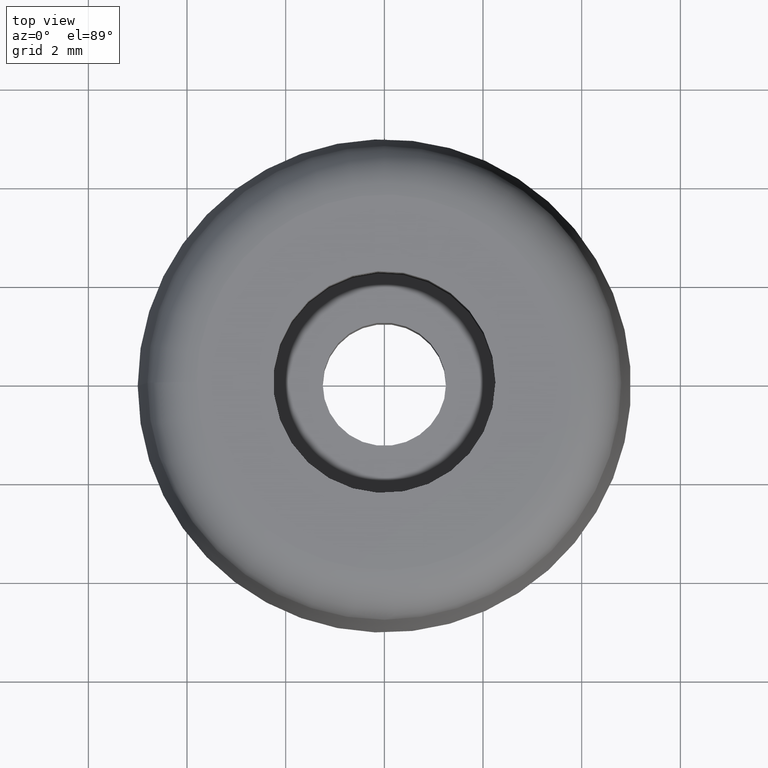
[diagram: clean part render]
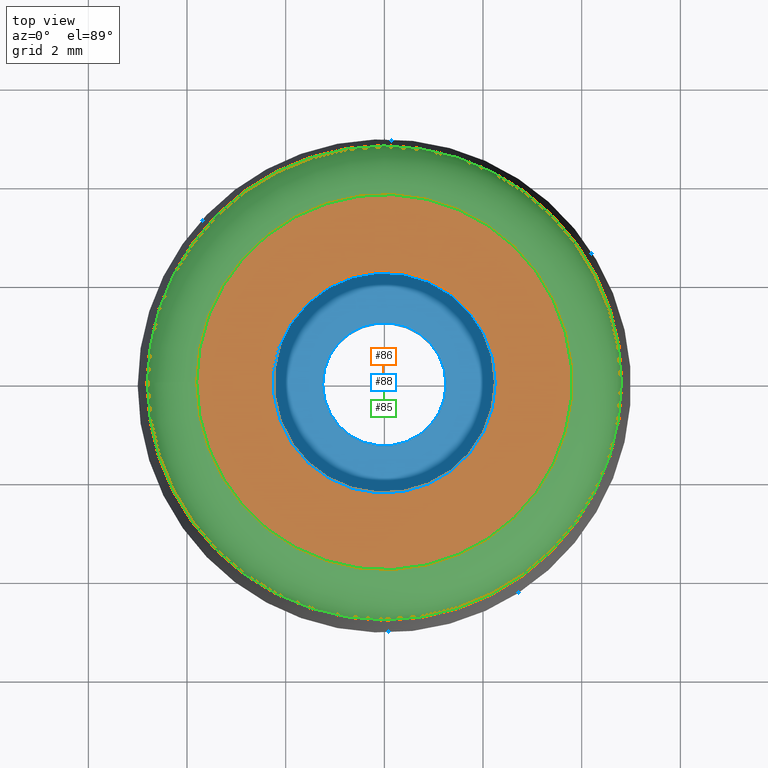
[diagram: same view with three faces highlighted in distinct colors, each labeled with its STEP entity id]
A machine part, top view with three faces highlighted in distinct colors.
Their STEP definitions:

[orange] entity #86 — the highlighted planar face has unit normal (0, 0, -1).
#18=PLANE('',#97);
#22=FACE_BOUND('',#38,.T.);
#29=FACE_OUTER_BOUND('',#37,.T.);
#37=EDGE_LOOP('',(#72));
#38=EDGE_LOOP('',(#73));
#49=CIRCLE('',#95,3.80401353459334);
#51=CIRCLE('',#98,2.25);
#56=VERTEX_POINT('',#140);
#58=VERTEX_POINT('',#145);
#63=EDGE_CURVE('',#56,#56,#49,.T.);
#65=EDGE_CURVE('',#58,#58,#51,.T.);
#72=ORIENTED_EDGE('',*,*,#63,.F.);
#73=ORIENTED_EDGE('',*,*,#65,.T.);
#86=ADVANCED_FACE('',(#29,#22),#18,.F.);
#95=AXIS2_PLACEMENT_3D('',#141,#112,#113);
#97=AXIS2_PLACEMENT_3D('',#144,#116,#117);
#98=AXIS2_PLACEMENT_3D('',#146,#118,#119);
#112=DIRECTION('center_axis',(0.,0.,-1.));
#113=DIRECTION('ref_axis',(1.,1.22464679914735E-16,0.));
#116=DIRECTION('center_axis',(0.,0.,-1.));
#117=DIRECTION('ref_axis',(-1.,0.,0.));
#118=DIRECTION('center_axis',(0.,0.,-1.));
#119=DIRECTION('ref_axis',(1.,0.,0.));
#140=CARTESIAN_POINT('',(-3.80401353459334,0.,4.5));
#141=CARTESIAN_POINT('Origin',(0.,0.,4.5));
#144=CARTESIAN_POINT('Origin',(0.,0.,4.5));
#145=CARTESIAN_POINT('',(2.25,0.,4.5));
#146=CARTESIAN_POINT('Origin',(0.,0.,4.5));

[blue] entity #88 — the highlighted planar face has unit normal (0, 0, 1).
#19=PLANE('',#101);
#24=FACE_BOUND('',#42,.T.);
#31=FACE_OUTER_BOUND('',#41,.T.);
#41=EDGE_LOOP('',(#76));
#42=EDGE_LOOP('',(#77));
#53=CIRCLE('',#102,2.25);
#54=CIRCLE('',#103,1.25);
#60=VERTEX_POINT('',#151);
#61=VERTEX_POINT('',#153);
#67=EDGE_CURVE('',#60,#60,#53,.T.);
#68=EDGE_CURVE('',#61,#61,#54,.T.);
#76=ORIENTED_EDGE('',*,*,#67,.T.);
#77=ORIENTED_EDGE('',*,*,#68,.F.);
#88=ADVANCED_FACE('',(#31,#24),#19,.T.);
#101=AXIS2_PLACEMENT_3D('',#150,#124,#125);
#102=AXIS2_PLACEMENT_3D('',#152,#126,#127);
#103=AXIS2_PLACEMENT_3D('',#154,#128,#129);
#124=DIRECTION('center_axis',(0.,0.,1.));
#125=DIRECTION('ref_axis',(1.,0.,0.));
#126=DIRECTION('center_axis',(0.,0.,1.));
#127=DIRECTION('ref_axis',(1.,0.,0.));
#128=DIRECTION('center_axis',(0.,0.,1.));
#129=DIRECTION('ref_axis',(1.,0.,0.));
#150=CARTESIAN_POINT('Origin',(0.,0.,2.));
#151=CARTESIAN_POINT('',(2.25,0.,2.));
#152=CARTESIAN_POINT('Origin',(0.,0.,2.));
#153=CARTESIAN_POINT('',(-1.25,-1.53080849893419E-16,2.));
#154=CARTESIAN_POINT('Origin',(0.,0.,2.));

[green] entity #85 — the highlighted toroidal blend (fillet) surface has major radius 3.804 mm and minor (blend) radius 1 mm.
#21=FACE_BOUND('',#36,.T.);
#28=FACE_OUTER_BOUND('',#35,.T.);
#35=EDGE_LOOP('',(#70));
#36=EDGE_LOOP('',(#71));
#49=CIRCLE('',#95,3.80401353459334);
#50=CIRCLE('',#96,4.80247388779875);
#56=VERTEX_POINT('',#140);
#57=VERTEX_POINT('',#142);
#63=EDGE_CURVE('',#56,#56,#49,.T.);
#64=EDGE_CURVE('',#57,#57,#50,.T.);
#70=ORIENTED_EDGE('',*,*,#63,.T.);
#71=ORIENTED_EDGE('',*,*,#64,.T.);
#84=TOROIDAL_SURFACE('',#94,3.80401353459334,1.);
#85=ADVANCED_FACE('',(#28,#21),#84,.T.);
#94=AXIS2_PLACEMENT_3D('',#139,#110,#111);
#95=AXIS2_PLACEMENT_3D('',#141,#112,#113);
#96=AXIS2_PLACEMENT_3D('',#143,#114,#115);
#110=DIRECTION('center_axis',(0.,0.,-1.));
#111=DIRECTION('ref_axis',(-1.,0.,0.));
#112=DIRECTION('center_axis',(0.,0.,-1.));
#113=DIRECTION('ref_axis',(1.,1.22464679914735E-16,0.));
#114=DIRECTION('center_axis',(0.,0.,1.));
#115=DIRECTION('ref_axis',(1.,1.22464679914735E-16,0.));
#139=CARTESIAN_POINT('Origin',(0.,0.,3.5));
#140=CARTESIAN_POINT('',(-3.80401353459334,0.,4.5));
#141=CARTESIAN_POINT('Origin',(0.,0.,4.5));
#142=CARTESIAN_POINT('',(-4.80247388779875,-1.1762668549363E-15,3.55547001962252));
#143=CARTESIAN_POINT('Origin',(0.,0.,3.55547001962252));